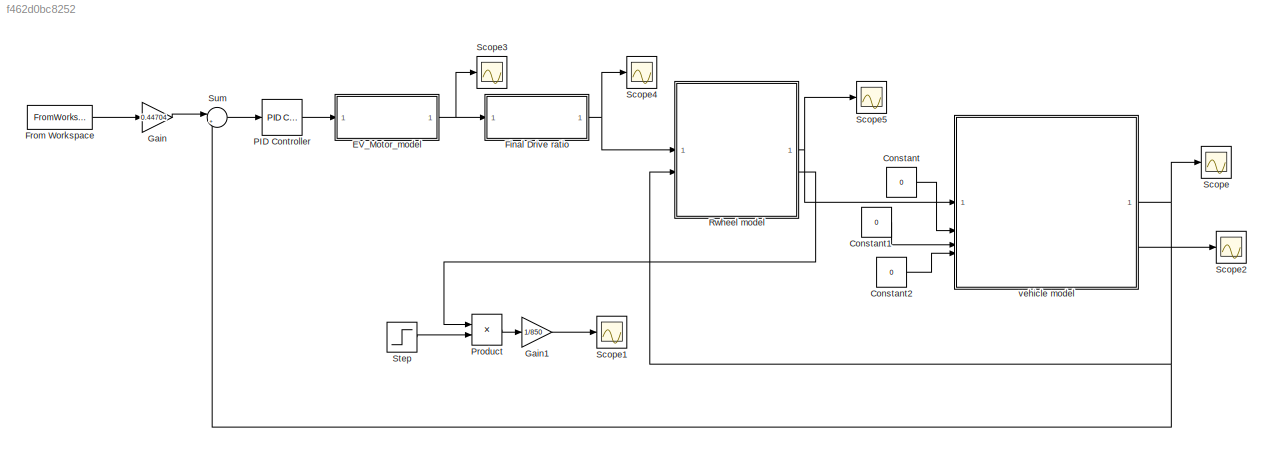
MODEL slx_f462d0bc8252
KIND model
CONFIG AbsTol = auto
CONFIG EnableMultiTasking = off
CONFIG FixedStep = 0.0001
CONFIG MaxStep = auto
CONFIG MinStep = auto
CONFIG RelTol = 1e-3
CONFIG SampleTimeConstraint = Unconstrained
CONFIG SolverName = ode4
CONFIG StartTime = 0.0
CONFIG StopTime = 250
BLOCK [Constant] Constant
  Value = 0
BLOCK [Constant] Constant1
  Value = 0
BLOCK [Constant] Constant2
  Value = 0
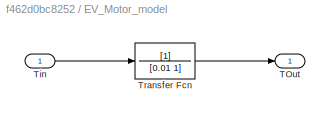
BLOCK [SubSystem] EV_Motor_model
BLOCK [Outport] EV_Motor_model/TOut
BLOCK [Inport] EV_Motor_model/Tin
BLOCK [TransferFcn] EV_Motor_model/Transfer Fcn
  Denominator = [0.01 1]
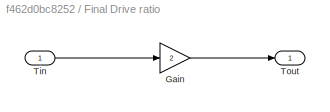
BLOCK [SubSystem] Final Drive ratio
BLOCK [Gain] Final Drive ratio/Gain
  Gain = 2
BLOCK [Inport] Final Drive ratio/Tin
BLOCK [Outport] Final Drive ratio/Tout
BLOCK [FromWorkspace] From Workspace
  VariableName = var
BLOCK [Gain] Gain
  Gain = 0.44704
BLOCK [Gain] Gain1
  Gain = 1/850
BLOCK [Reference] PID Controller  REF=slpidlib/PID Controller
  LibrarySourceBlock = simulink/Continuous/PID Controller
  SourceBlock = slpidlib/PID Controller
  SourceType = PID 1dof
BLOCK [Product] Product
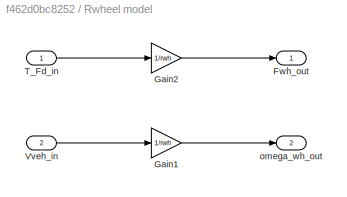
BLOCK [SubSystem] Rwheel model
BLOCK [Outport] Rwheel model/Fwh_out
BLOCK [Gain] Rwheel model/Gain1
  Gain = 1/rwh
BLOCK [Gain] Rwheel model/Gain2
  Gain = 1/rwh
BLOCK [Inport] Rwheel model/T_Fd_in
BLOCK [Inport] Rwheel model/Vveh_in
  Port = 2
BLOCK [Outport] Rwheel model/omega_wh_out
  Port = 2
BLOCK [Scope] Scope
  Floating = off
  NumInputPorts = 1
  ScopeSpecificationString = Simulink.scopes.TimeScopeBlockCfg('CurrentConfiguration', extmgr.ConfigurationSet(extmgr.Configuration('Core','General UI',true),extmgr.Configuration('Core','Source UI',true),extmgr.Configuration('Sources','WiredSimulink',true,'DataLoggingVariableName','ScopeData1','DataLoggingSaveFormat','StructureWithTime'),extmgr.Configuration('Visuals','Time Domain',true,'SerializedDisplays',{struct('MinYLimRe...<+1464ch>
BLOCK [Scope] Scope1
  Floating = off
  NumInputPorts = 1
  ScopeSpecificationString = Simulink.scopes.TimeScopeBlockCfg('CurrentConfiguration', extmgr.ConfigurationSet(extmgr.Configuration('Core','General UI',true),extmgr.Configuration('Core','Source UI',true),extmgr.Configuration('Sources','WiredSimulink',true,'DataLoggingVariableName','ScopeData1'),extmgr.Configuration('Visuals','Time Domain',true,'SerializedDisplays',{struct('MinYLimReal','-4.28893','MaxYLimReal','37.75402','YLa...<+1368ch>
BLOCK [Scope] Scope2
  Floating = off
  NumInputPorts = 1
  ScopeSpecificationString = Simulink.scopes.TimeScopeBlockCfg('CurrentConfiguration', extmgr.ConfigurationSet(extmgr.Configuration('Core','General UI',true),extmgr.Configuration('Core','Source UI',true),extmgr.Configuration('Sources','WiredSimulink',true,'DataLoggingVariableName','ScopeData4','DataLoggingSaveFormat','StructureWithTime'),extmgr.Configuration('Visuals','Time Domain',true,'SerializedDisplays',{struct('MinYLimRe...<+1586ch>
BLOCK [Scope] Scope3
  Floating = off
  NumInputPorts = 1
  ScopeSpecificationString = Simulink.scopes.TimeScopeBlockCfg('CurrentConfiguration', extmgr.ConfigurationSet(extmgr.Configuration('Core','General UI',true),extmgr.Configuration('Core','Source UI',true),extmgr.Configuration('Sources','WiredSimulink',true),extmgr.Configuration('Visuals','Time Domain',true,'SerializedDisplays',{struct('MinYLimReal','-766.08101','MaxYLimReal','1228.21504','YLabelReal','','MinYLimMag',' 0.00000'...<+1385ch>
BLOCK [Scope] Scope4
  Floating = off
  NumInputPorts = 1
  ScopeSpecificationString = Simulink.scopes.TimeScopeBlockCfg('CurrentConfiguration', extmgr.ConfigurationSet(extmgr.Configuration('Core','General UI',true),extmgr.Configuration('Core','Source UI',true),extmgr.Configuration('Sources','WiredSimulink',true,'DataLoggingVariableName','ScopeData5'),extmgr.Configuration('Visuals','Time Domain',true,'SerializedDisplays',{struct('MinYLimReal','-1532.16202','MaxYLimReal','2456.43008'...<+1398ch>
BLOCK [Scope] Scope5
  Floating = off
  NumInputPorts = 1
  ScopeSpecificationString = Simulink.scopes.TimeScopeBlockCfg('CurrentConfiguration', extmgr.ConfigurationSet(extmgr.Configuration('Core','General UI',true),extmgr.Configuration('Core','Source UI',true),extmgr.Configuration('Sources','WiredSimulink',true,'DataLoggingVariableName','ScopeData6'),extmgr.Configuration('Visuals','Time Domain',true,'SerializedDisplays',{struct('MinYLimReal','-2872.44473','MaxYLimReal','4605.23074'...<+1395ch>
BLOCK [Step] Step
  After = 600
  SampleTime = 0
BLOCK [Sum] Sum
  Inputs = |+-
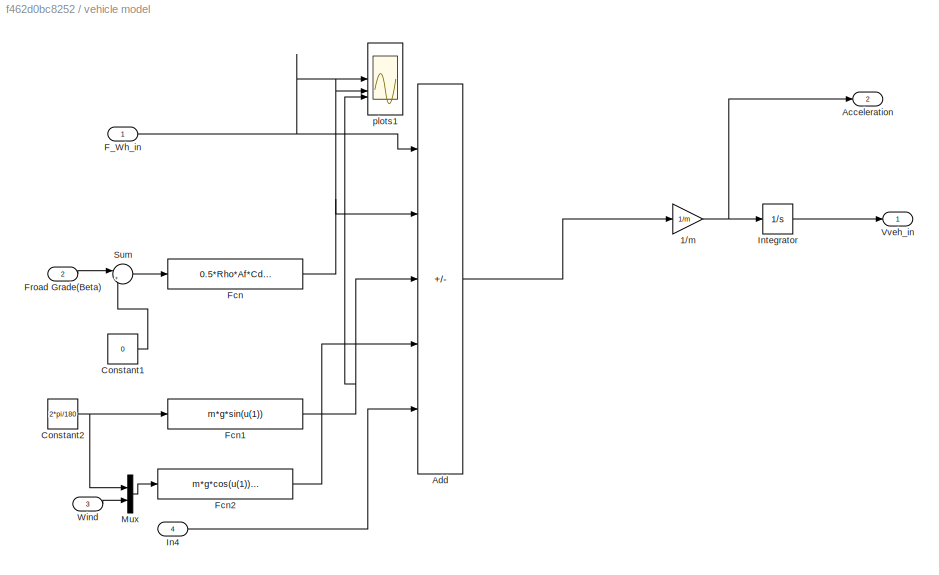
BLOCK [SubSystem] vehicle model
BLOCK [Gain] vehicle model/1//m
  Gain = 1/m
BLOCK [Outport] vehicle model/Acceleration
  Port = 2
BLOCK [Sum] vehicle model/Add
  IconShape = rectangular
  Inputs = +----
BLOCK [Constant] vehicle model/Constant1
  Value = 0
BLOCK [Constant] vehicle model/Constant2
  Value = 2*pi/180
BLOCK [Inport] vehicle model/F_Wh_in
BLOCK [Fcn] vehicle model/Fcn
  Expr = 0.5*Rho*Af*Cd*(u(1)^2)
BLOCK [Fcn] vehicle model/Fcn1
  Expr = m*g*sin(u(1))
BLOCK [Fcn] vehicle model/Fcn2
  Expr = m*g*cos(u(1))*(C0+C1*u(2)*u(2))
BLOCK [Inport] vehicle model/Froad Grade(Beta)
  Port = 2
BLOCK [Inport] vehicle model/In4
  Port = 4
BLOCK [Integrator] vehicle model/Integrator
BLOCK [Mux] vehicle model/Mux
  DisplayOption = bar
  Inputs = 2
BLOCK [Sum] vehicle model/Sum
  Inputs = |++
BLOCK [Outport] vehicle model/Vveh_in
BLOCK [Inport] vehicle model/Wind
  Port = 3
BLOCK [Scope] vehicle model/plots1
  Floating = off
  NumInputPorts = 3
  ScopeSpecificationString = Simulink.scopes.TimeScopeBlockCfg('CurrentConfiguration', extmgr.ConfigurationSet(extmgr.Configuration('Core','General UI',true),extmgr.Configuration('Core','Source UI',true),extmgr.Configuration('Sources','WiredSimulink',true,'DataLoggingSaveFormat','StructureWithTime','DataLoggingVariableName','ScopeData2','DataLoggingLimitDataPoints',true),extmgr.Configuration('Visuals','Time Domain',true,'Seri...<+1503ch>
LINE Constant1:1 -> vehicle model:3
LINE Constant2:1 -> vehicle model:4
LINE Constant:1 -> vehicle model:2
LINE EV_Motor_model/Tin:1 -> EV_Motor_model/Transfer Fcn:1
LINE EV_Motor_model/Transfer Fcn:1 -> EV_Motor_model/TOut:1
NET EV_Motor_model:1 -> Final Drive ratio:1, Scope3:1
LINE Final Drive ratio/Gain:1 -> Final Drive ratio/Tout:1
LINE Final Drive ratio/Tin:1 -> Final Drive ratio/Gain:1
NET Final Drive ratio:1 -> Rwheel model:1, Scope4:1
LINE From Workspace:1 -> Gain:1
LINE Gain1:1 -> Scope1:1
LINE Gain:1 -> Sum:1
LINE PID Controller:1 -> EV_Motor_model:1
LINE Product:1 -> Gain1:1
LINE Rwheel model/Gain1:1 -> Rwheel model/omega_wh_out:1
LINE Rwheel model/Gain2:1 -> Rwheel model/Fwh_out:1
LINE Rwheel model/T_Fd_in:1 -> Rwheel model/Gain2:1
LINE Rwheel model/Vveh_in:1 -> Rwheel model/Gain1:1
NET Rwheel model:1 -> Scope5:1, vehicle model:1
LINE Rwheel model:2 -> Product:1
LINE Step:1 -> Product:2
LINE Sum:1 -> PID Controller:1
NET vehicle model/1//m:1 -> vehicle model/Acceleration:1, vehicle model/Integrator:1
LINE vehicle model/Add:1 -> vehicle model/1//m:1
LINE vehicle model/Constant1:1 -> vehicle model/Sum:2
NET vehicle model/Constant2:1 -> vehicle model/Fcn1:1, vehicle model/Mux:1
NET vehicle model/F_Wh_in:1 -> vehicle model/Add:1, vehicle model/plots1:1
NET vehicle model/Fcn1:1 -> vehicle model/Add:3, vehicle model/plots1:3
LINE vehicle model/Fcn2:1 -> vehicle model/Add:4
NET vehicle model/Fcn:1 -> vehicle model/Add:2, vehicle model/plots1:2
LINE vehicle model/Froad Grade(Beta):1 -> vehicle model/Sum:1
LINE vehicle model/In4:1 -> vehicle model/Add:5
LINE vehicle model/Integrator:1 -> vehicle model/Vveh_in:1
LINE vehicle model/Mux:1 -> vehicle model/Fcn2:1
LINE vehicle model/Sum:1 -> vehicle model/Fcn:1
LINE vehicle model/Wind:1 -> vehicle model/Mux:2
NET vehicle model:1 -> Rwheel model:2, Scope:1, Sum:2
LINE vehicle model:2 -> Scope2:1
note: NET lines group one-source signal fan-out (src -> all destinations, sorted); 1:1 wires keep LINE
